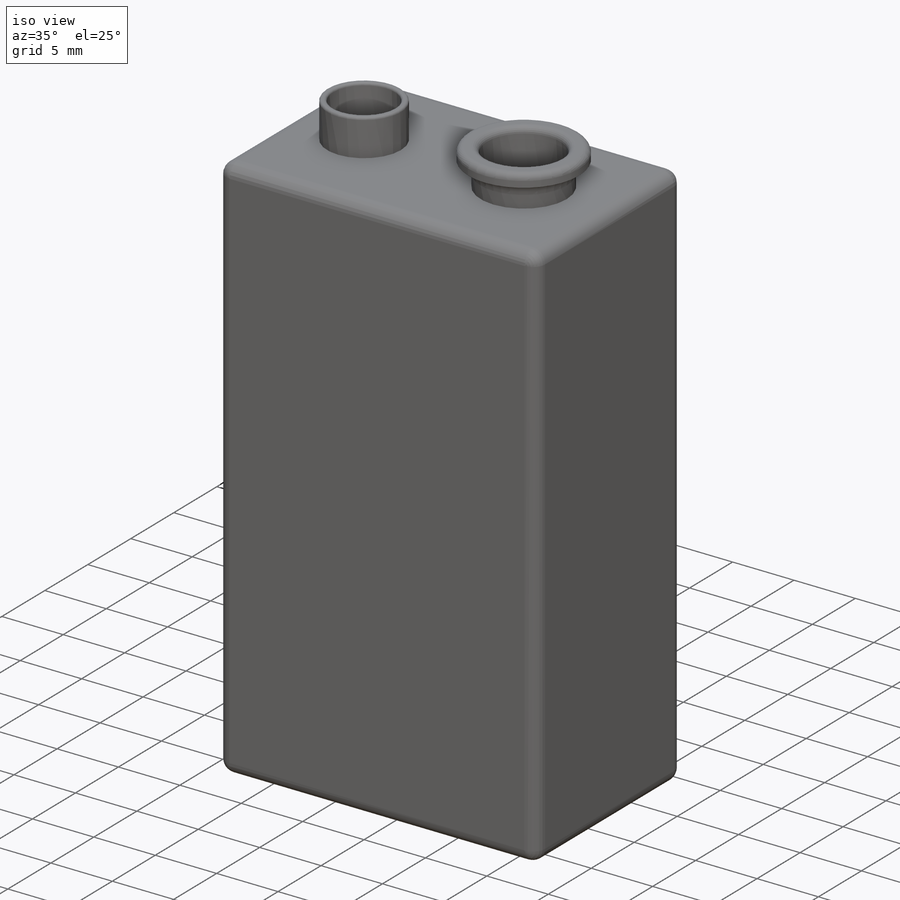
[diagram: iso view]
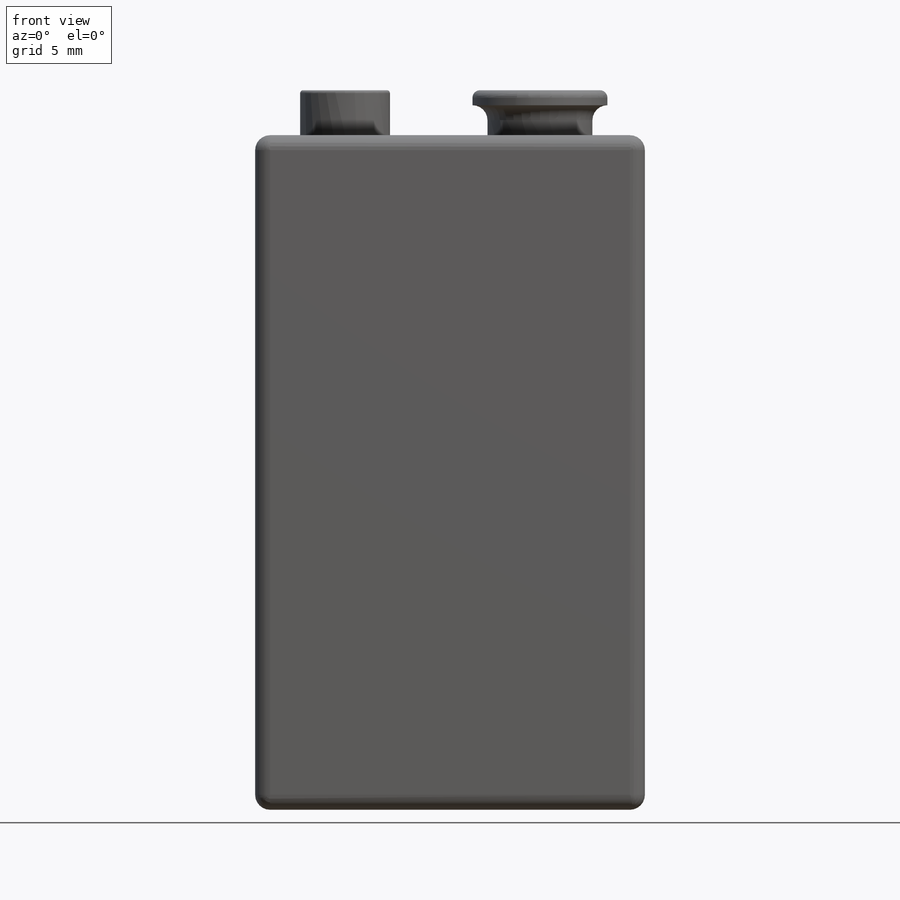
[diagram: front view]
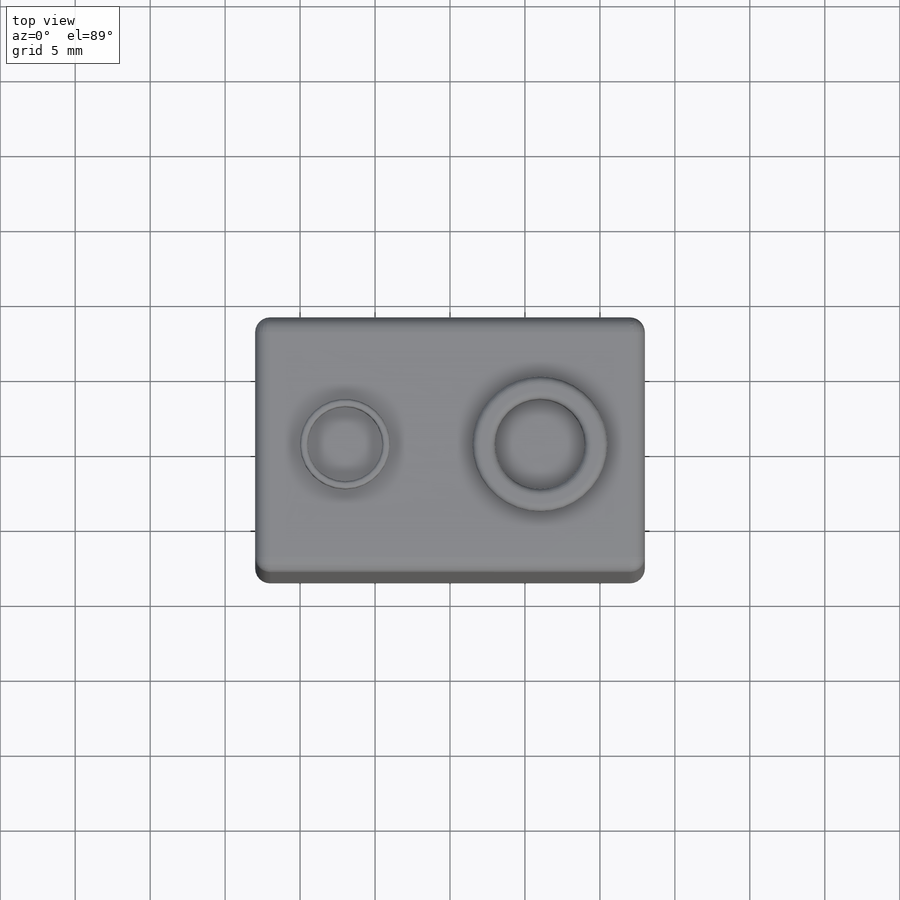
[diagram: top view]
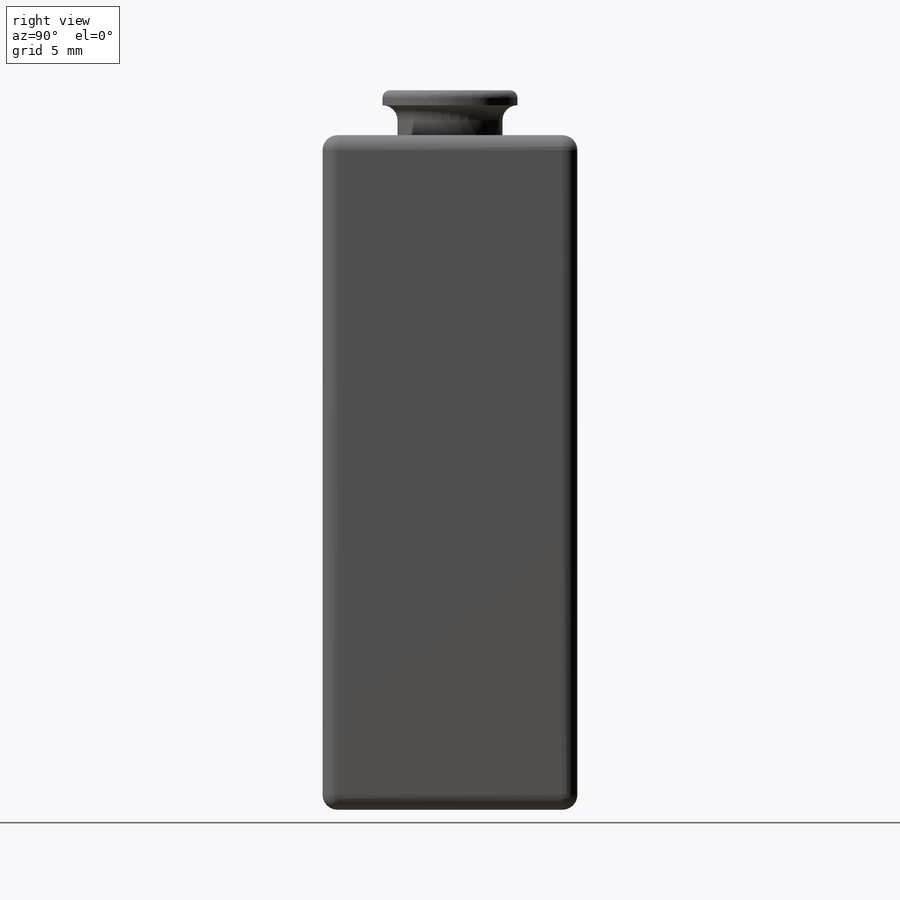
[diagram: right view]
SOLIDWORKS PART (.sldprt)
format: sldprt  version: not decoded by parser v0  size: 880,128 bytes
history: native  units: mm
features: sketch x4, extrude x4, fillet x4, material x1 (+11 scaffold rows collapsed)
feature tree (24):
  scaffold x11  (default folders/planes/origin — collapsed)
  material  "Material <not specified>"
  sketch  "Sketch1"  dims[D1=26.0mm D2=17.0mm]
  extrude  "Boss-Extrude1"  Depth=45mm
  fillet  "Fillet1"  Radius=1mm
  sketch  "Sketch2"  dims[D1=6.0mm D2=5.0mm D3=6.0mm]
  extrude  "Boss-Extrude2"  Depth=3mm
  sketch  "Sketch3"  dims[D1=7.0mm D2=6.0mm D3=6.0mm]
  extrude  "Boss-Extrude3"  Depth=2mm
  sketch  "Sketch4"  dims[D1=9.0mm]
  extrude  "Boss-Extrude4"  Depth=1mm
  fillet  "Fillet4"  Radius=1mm
  fillet  "Fillet5"  Radius=0.5mm
  fillet  "Fillet6"  Radius=0.2mm
decode coverage: 12 of 12 modeling features carry decoded parameters
note: suppression state not decoded; provenance and decode notes live in map.json
